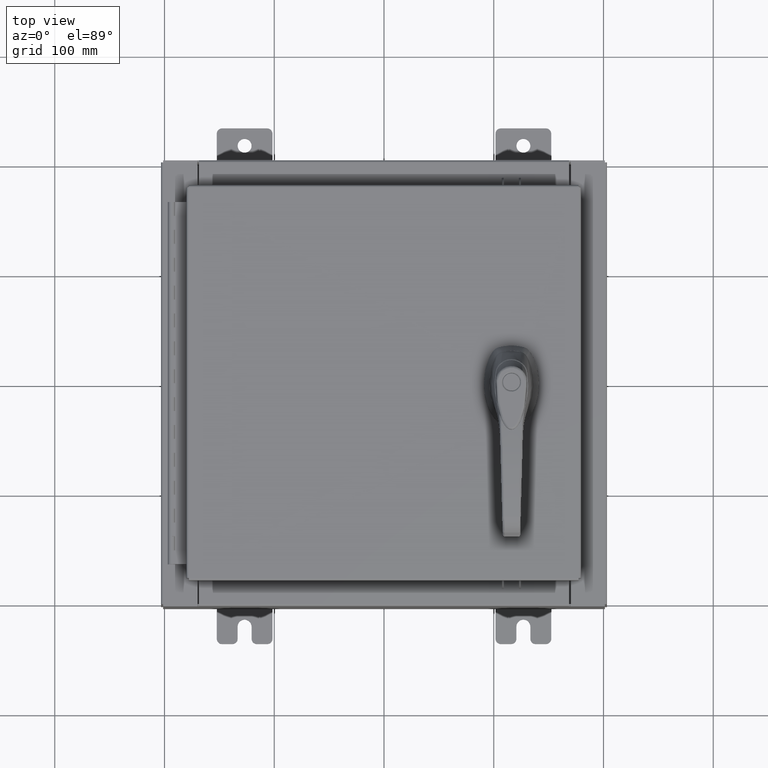
[diagram: clean part render]
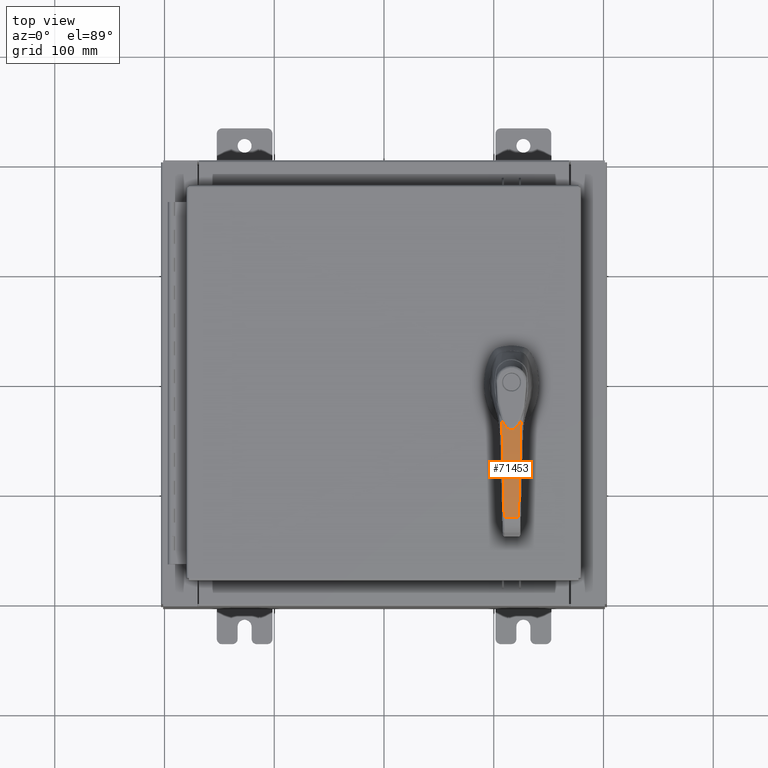
[diagram: same view with one face highlighted and labeled with its STEP entity id]
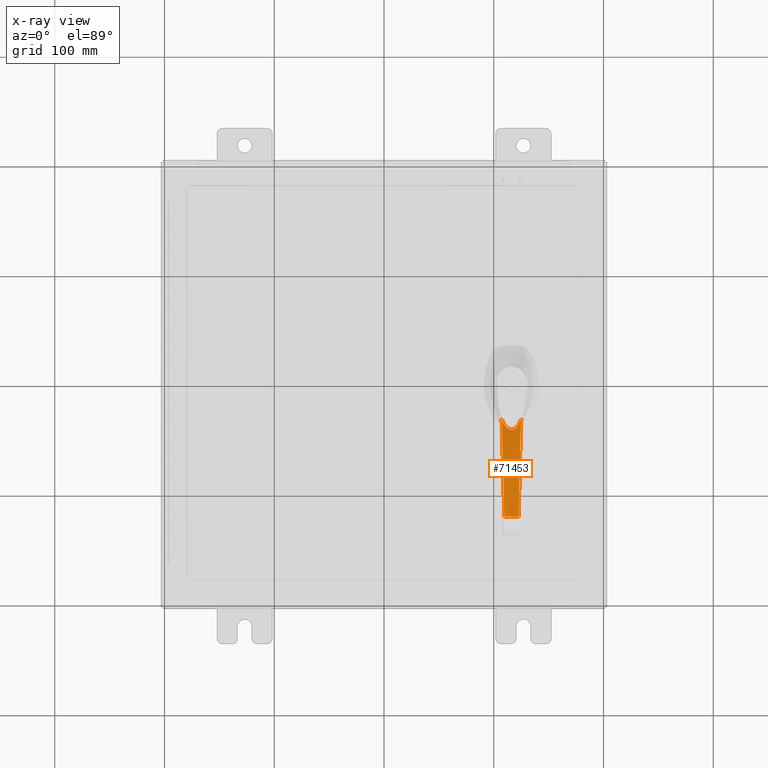
[diagram: x-ray of the same camera — body ghosted, the highlighted face saturated]
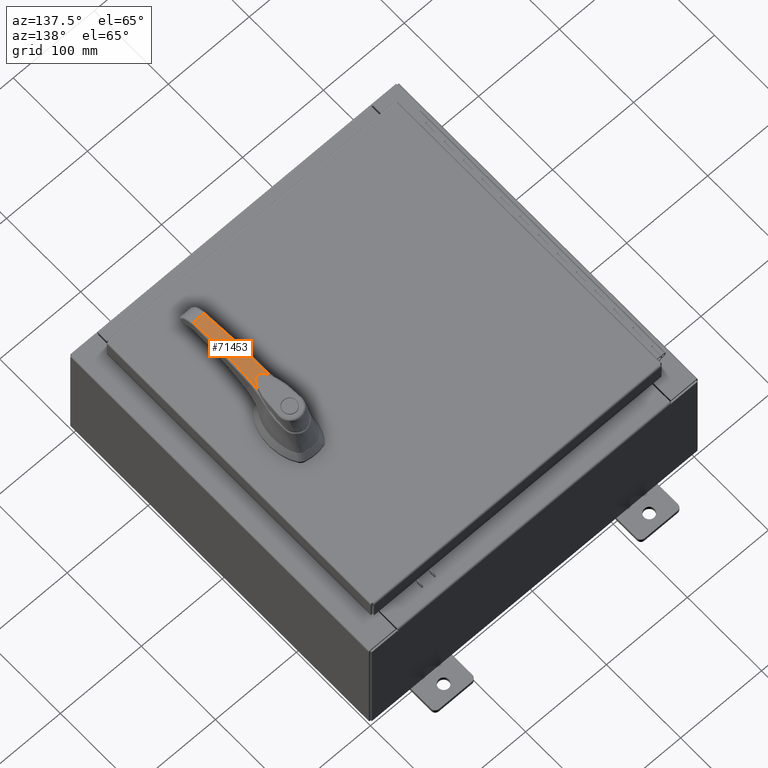
[diagram: same view with one face highlighted and labeled with its STEP entity id]
A machine part, top view. The second image highlights one B-rep face of the part: STEP entity #71453.
The next image is the same camera in x-ray: the body ghosted, the highlighted face saturated — about 0% of this face is hidden behind the body in this view.
A second angle (auxiliary view) of the same face is appended — the face is thin or edge-on in the first view.
In plain terms, the highlighted cylindrical surface (partial cylindrical patch) has radius 300 mm, axis along (-1, 0, 0).
Its self-contained STEP definition (entity closure, byte-faithful):
#2113 = CARTESIAN_POINT ( 'NONE',  ( 1.549936709521848400, 0.3396595521461270900, 1.832114909085221100 ) ) ;
#2785 = CARTESIAN_POINT ( 'NONE',  ( 1.403971242061131700, 0.3027154104630230300, 1.811233171745011900 ) ) ;
#3139 = CARTESIAN_POINT ( 'NONE',  ( 1.530290378760440900, 0.2278771327639587700, 1.829412508182425700 ) ) ;
#3503 = CARTESIAN_POINT ( 'NONE',  ( 1.632741932373680700, 0.1304805322846232000, 1.843136084596468200 ) ) ;
#3511 = CARTESIAN_POINT ( 'NONE',  ( 4.805199877897496900, 0.2549857665720962600, 1.824333981427781500 ) ) ;
#3866 = CARTESIAN_POINT ( 'NONE',  ( 1.680095335233368100, -0.01197136183687798000, 1.849171087712740500 ) ) ;
#3874 = CARTESIAN_POINT ( 'NONE',  ( 3.354255696629973000, 0.2927274858646526900, 1.939252233246037600 ) ) ;
#4206 = CARTESIAN_POINT ( 'NONE',  ( 1.638941990221857400, -0.1218315539769631400, 1.843937560668217300 ) ) ;
#4212 = CARTESIAN_POINT ( 'NONE',  ( 1.962192344927163400, 0.3289308373534525200, 1.881644855761424700 ) ) ;
#4565 = CARTESIAN_POINT ( 'NONE',  ( 1.534019329573112600, -0.2251692678404879100, 1.829928034573026000 ) ) ;
#4928 = CARTESIAN_POINT ( 'NONE',  ( 1.413242188827258200, -0.2980603697912322400, 1.812614391285411100 ) ) ;
#6260 = VERTEX_POINT ( 'NONE', #61415 ) ;
#6337 = EDGE_CURVE ( 'NONE', #45424, #81669, #36201, .T. ) ;
#8242 = EDGE_CURVE ( 'NONE', #6260, #19257, #20501, .T. ) ;
#10086 = CARTESIAN_POINT ( 'NONE',  ( 1.285167403707583800, 0.3546133445978453800, 1.792860362760494900 ) ) ;
#10301 = CARTESIAN_POINT ( 'NONE',  ( 1.461149604711532000, -0.3419711910575410400, 1.819977865742850500 ) ) ;
#11109 = CARTESIAN_POINT ( 'NONE',  ( 1.410378708594597600, 0.2995076315425556600, 1.812188464822335600 ) ) ;
#11487 = CARTESIAN_POINT ( 'NONE',  ( 1.531637965723847300, 0.2269023104898830500, 1.829598928321424200 ) ) ;
#11822 = CARTESIAN_POINT ( 'NONE',  ( 1.640565656399495000, 0.1198494022903185000, 1.844149003382669500 ) ) ;
#11830 = CARTESIAN_POINT ( 'NONE',  ( 4.713819558154678900, 0.2573626924901422100, 1.837270814955571000 ) ) ;
#12181 = CARTESIAN_POINT ( 'NONE',  ( 1.675677567251034000, -0.04071549074534740900, 1.848616337587193300 ) ) ;
#12189 = CARTESIAN_POINT ( 'NONE',  ( 3.255921162986638300, 0.2952847344197879200, 1.940502775483815600 ) ) ;
#12548 = CARTESIAN_POINT ( 'NONE',  ( 1.634216720233409200, -0.1284710039474825400, 1.843326990127290800 ) ) ;
#12556 = CARTESIAN_POINT ( 'NONE',  ( 1.638260262526217000, 0.3373621368790556400, 1.844188585699163800 ) ) ;
#12897 = CARTESIAN_POINT ( 'NONE',  ( 1.532357968586527600, -0.2263797702776801100, 1.829698477823363100 ) ) ;
#13250 = CARTESIAN_POINT ( 'NONE',  ( 1.373760058113485000, -0.3180463064242660100, 1.806743859184427100 ) ) ;
#19257 = VERTEX_POINT ( 'NONE', #73071 ) ;
#19429 = CARTESIAN_POINT ( 'NONE',  ( 1.411895976838739800, 0.2987418508005002500, 1.812414227103907000 ) ) ;
#19778 = CARTESIAN_POINT ( 'NONE',  ( 1.553573932691922000, 0.2109698468301410000, 1.832631472685386300 ) ) ;
#20132 = CARTESIAN_POINT ( 'NONE',  ( 1.655649401556312400, 0.09432184503515099500, 1.846080186316502600 ) ) ;
#20498 = CARTESIAN_POINT ( 'NONE',  ( 1.670501837927473600, -0.05933737364029612700, 1.847964213049003900 ) ) ;
#20501 = B_SPLINE_CURVE_WITH_KNOTS ( 'NONE', 3,
 ( #10086, #43458, #51811, #2113 ),
 .UNSPECIFIED., .F., .F.,
 ( 4, 4 ),
 ( 0.0000000000000000000, 1.000000000000000000 ),
 .UNSPECIFIED. ) ;
#20508 = CARTESIAN_POINT ( 'NONE',  ( 3.197470930382345000, 0.2968049740498352500, 1.940850218433535700 ) ) ;
#20847 = CARTESIAN_POINT ( 'NONE',  ( 1.633059957810182300, -0.1300495619729993800, 1.843177265309141600 ) ) ;
#21215 = CARTESIAN_POINT ( 'NONE',  ( 1.514556654445395700, -0.2392854525976224900, 1.827236800739576500 ) ) ;
#21590 = CARTESIAN_POINT ( 'NONE',  ( 1.285167405151898900, -0.3546133440856410500, 1.792860362220502600 ) ) ;
#24680 = ORIENTED_EDGE ( 'NONE', *, *, #104961, .T. ) ;
#26982 = CARTESIAN_POINT ( 'NONE',  ( 1.285167405151898900, -0.3546133440856410500, 1.792860362220502600 ) ) ;
#27808 = CARTESIAN_POINT ( 'NONE',  ( 1.435195623636535500, 0.2869488096781734300, 1.815878705668508000 ) ) ;
#28161 = CARTESIAN_POINT ( 'NONE',  ( 1.597928116298629200, 0.1710148495156830500, 1.838578136496558100 ) ) ;
#28432 = CARTESIAN_POINT ( 'NONE',  ( 4.805199877897498700, 6.099088612688645700, 1.824333981427783700 ) ) ;
#28520 = CARTESIAN_POINT ( 'NONE',  ( 1.663589786831885200, 0.07759667621417810900, 1.847089689351789000 ) ) ;
#28530 = CARTESIAN_POINT ( 'NONE',  ( 4.384581782162134000, 0.2659316760357903200, 1.876757077655745200 ) ) ;
#28869 = CARTESIAN_POINT ( 'NONE',  ( 1.667982851357451300, -0.06648546394591629800, 1.847645912295601500 ) ) ;
#28877 = CARTESIAN_POINT ( 'NONE',  ( 3.183455179332785900, 0.2971695341875233400, 1.940896711539991800 ) ) ;
#29226 = ORIENTED_EDGE ( 'NONE', *, *, #30193, .F. ) ;
#29238 = CARTESIAN_POINT ( 'NONE',  ( 1.620322453436930900, -0.1472583990823385100, 1.841527598334620000 ) ) ;
#29607 = CARTESIAN_POINT ( 'NONE',  ( 1.466267725725023800, -0.2693476378157188500, 1.820376805866247300 ) ) ;
#30193 = EDGE_CURVE ( 'NONE', #45424, #37906, #99960, .T. ) ;
#31198 = CARTESIAN_POINT ( 'NONE',  ( 3.722113557932751800, -0.2831583025764937100, 1.939610180467789000 ) ) ;
#31293 = CYLINDRICAL_SURFACE ( 'NONE', #88780, 11.81102362204724300 ) ;
#33643 = VECTOR ( 'NONE', #94616, 39.37007874015748100 ) ;
#34351 = CARTESIAN_POINT ( 'NONE',  ( 3.149606299212600400, 0.3588687022006186700, -9.870078740157481400 ) ) ;
#36159 = CARTESIAN_POINT ( 'NONE',  ( 1.486437698170242500, 0.2572311655015946900, 1.823263412956679800 ) ) ;
#36201 = LINE ( 'NONE', #28432, #33643 ) ;
#36501 = CARTESIAN_POINT ( 'NONE',  ( 1.621908635050497000, 0.1444618146254948700, 1.841728913890022800 ) ) ;
#36856 = CARTESIAN_POINT ( 'NONE',  ( 1.666216210166185900, 0.07113358953773331300, 1.847422397405533500 ) ) ;
#36863 = CARTESIAN_POINT ( 'NONE',  ( 3.988872018762663600, 0.2762265065312504700, 1.911874702511218400 ) ) ;
#37229 = CARTESIAN_POINT ( 'NONE',  ( 1.667157571439228600, -0.06869618003176464200, 1.847541531571267300 ) ) ;
#37237 = CARTESIAN_POINT ( 'NONE',  ( 2.994844391632358200, 0.3020755544132373000, 1.941348543382791100 ) ) ;
#37589 = CARTESIAN_POINT ( 'NONE',  ( 1.580548218858697200, -0.1876082219816772000, 1.836261751761620200 ) ) ;
#37906 = VERTEX_POINT ( 'NONE', #50661 ) ;
#37938 = CARTESIAN_POINT ( 'NONE',  ( 1.431996714045676000, -0.2883624919504084700, 1.815388736092747000 ) ) ;
#39509 = CARTESIAN_POINT ( 'NONE',  ( 4.805199877897497800, -0.2549857665720935400, 1.824333981427782600 ) ) ;
#43458 = CARTESIAN_POINT ( 'NONE',  ( 1.372892883534754200, 0.3469424119738788700, 1.806884306011977700 ) ) ;
#44157 = CARTESIAN_POINT ( 'NONE',  ( 1.362201980543991300, 0.3225149545132348100, 1.804919336107086500 ) ) ;
#44496 = CARTESIAN_POINT ( 'NONE',  ( 1.516830157375135300, 0.2373842696044991000, 1.827543091604346900 ) ) ;
#44847 = CARTESIAN_POINT ( 'NONE',  ( 1.630415031557484800, 0.1335971382965786800, 1.842834560165926400 ) ) ;
#45226 = CARTESIAN_POINT ( 'NONE',  ( 1.666943250047650200, 0.06925946003726704500, 1.847514415332581800 ) ) ;
#45235 = CARTESIAN_POINT ( 'NONE',  ( 3.605464906671495700, 0.2861957975425940000, 1.932408694108102900 ) ) ;
#45424 = VERTEX_POINT ( 'NONE', #65337 ) ;
#45578 = CARTESIAN_POINT ( 'NONE',  ( 1.658104608024421300, -0.08997679606067522700, 1.846394063252969600 ) ) ;
#45584 = CARTESIAN_POINT ( 'NONE',  ( 2.504789629931729600, 0.3148162043671251500, 1.924408988684542400 ) ) ;
#45931 = CARTESIAN_POINT ( 'NONE',  ( 1.549882932702344200, -0.2132559411452238700, 1.832109519501141400 ) ) ;
#46303 = CARTESIAN_POINT ( 'NONE',  ( 1.417457569571613400, -0.2959139997767300500, 1.813240278477134900 ) ) ;
#46883 = CARTESIAN_POINT ( 'NONE',  ( 1.285167405151898900, -0.3546133440856410500, 1.792860362220502600 ) ) ;
#47891 = CARTESIAN_POINT ( 'NONE',  ( 2.633561730653564600, -0.3114730037977900300, 1.942212103133118300 ) ) ;
#50661 = CARTESIAN_POINT ( 'NONE',  ( 1.549936709521859200, -0.3396595521461254200, 1.832114909085222200 ) ) ;
#51811 = CARTESIAN_POINT ( 'NONE',  ( 1.461149604711799300, 0.3419711910575374800, 1.819977865742880700 ) ) ;
#52464 = CARTESIAN_POINT ( 'NONE',  ( 1.395339831983441600, 0.3069710070873726300, 1.809941467447426800 ) ) ;
#52653 = VERTEX_POINT ( 'NONE', #46883 ) ;
#52835 = CARTESIAN_POINT ( 'NONE',  ( 1.528395749153942800, 0.2292404292824109500, 1.829150185326987400 ) ) ;
#53182 = CARTESIAN_POINT ( 'NONE',  ( 1.632357006304437000, 0.1310003132830380700, 1.843086230139446400 ) ) ;
#53519 = EDGE_CURVE ( 'NONE', #37906, #52653, #57704, .T. ) ;
#53526 = CARTESIAN_POINT ( 'NONE',  ( 1.680175953285407000, 0.02266160196180203400, 1.849181196457978100 ) ) ;
#53534 = CARTESIAN_POINT ( 'NONE',  ( 3.397158093014658800, 0.2916119047857188600, 1.938425827258925000 ) ) ;
#53884 = CARTESIAN_POINT ( 'NONE',  ( 1.644906487703457200, -0.1129549742528684600, 1.844705813593933800 ) ) ;
#53891 = CARTESIAN_POINT ( 'NONE',  ( 2.085957004588871100, 0.3257099898517480400, 1.893740539790302400 ) ) ;
#54251 = CARTESIAN_POINT ( 'NONE',  ( 1.536332061329278800, -0.2234729747293776300, 1.830247252460746300 ) ) ;
#54610 = CARTESIAN_POINT ( 'NONE',  ( 1.413946465048467000, -0.2977029543502160400, 1.812719044079245100 ) ) ;
#55528 = ORIENTED_EDGE ( 'NONE', *, *, #6337, .T. ) ;
#55931 = FACE_OUTER_BOUND ( 'NONE', #107224, .T. ) ;
#56187 = CARTESIAN_POINT ( 'NONE',  ( 1.549936709521859200, -0.3396595521461254200, 1.832114909085222200 ) ) ;
#57704 = B_SPLINE_CURVE_WITH_KNOTS ( 'NONE', 3,
 ( #68294, #10301, #76578, #26982 ),
 .UNSPECIFIED., .F., .F.,
 ( 4, 4 ),
 ( 0.0000000000000000000, 1.000000000000000000 ),
 .UNSPECIFIED. ) ;
#58539 = B_SPLINE_CURVE_WITH_KNOTS ( 'NONE', 3,
 ( #3511, #11830, #78115, #28530, #86417, #36863, #94720, #45235, #103075, #53534, #3874, #61875, #12189, #70187, #20508, #78482, #28877, #86778, #37237, #95071, #45584, #103440, #53891, #4212, #62232, #12556, #70534 ),
 .UNSPECIFIED., .F., .F.,
 ( 4, 2, 2, 2, 2, 2, 1, 1, 1, 2, 2, 2, 2, 2, 4 ),
 ( 0.0000000000000000000, 0.1250000000000066100, 0.2500000000000132100, 0.3750000000000198200, 0.4375000000000230900, 0.4687500000000247600, 0.4843750000000258100, 0.4921875000000263700, 0.4960937500000263700, 0.4980468750000264200, 0.5000000000000264200, 0.6250000000000197600, 0.7500000000000132100, 0.8750000000000065500, 1.000000000000000000 ),
 .UNSPECIFIED. ) ;
#59374 = ORIENTED_EDGE ( 'NONE', *, *, #78964, .T. ) ;
#60816 = CARTESIAN_POINT ( 'NONE',  ( 1.408249181654886300, 0.3005784227495882900, 1.811871312986568900 ) ) ;
#61158 = CARTESIAN_POINT ( 'NONE',  ( 1.531099334706964100, 0.2272923127439798700, 1.829524427485562000 ) ) ;
#61415 = CARTESIAN_POINT ( 'NONE',  ( 1.285167403707583800, 0.3546133445978453800, 1.792860362760494900 ) ) ;
#61513 = CARTESIAN_POINT ( 'NONE',  ( 1.632892665029209700, 0.1302765233638269200, 1.843155604267183300 ) ) ;
#61869 = CARTESIAN_POINT ( 'NONE',  ( 1.678980772138702900, -0.02348651453883024400, 1.849031485695043800 ) ) ;
#61875 = CARTESIAN_POINT ( 'NONE',  ( 3.288871157594097200, 0.2944278238416445100, 1.940143925120731700 ) ) ;
#62223 = CARTESIAN_POINT ( 'NONE',  ( 1.635815798552256600, -0.1262595667975525100, 1.843533802100506300 ) ) ;
#62232 = CARTESIAN_POINT ( 'NONE',  ( 1.738344976384683900, 0.3347569108671062400, 1.856868895625623600 ) ) ;
#62571 = CARTESIAN_POINT ( 'NONE',  ( 1.533023177175520900, -0.2258956494556961500, 1.829790409659591400 ) ) ;
#62932 = CARTESIAN_POINT ( 'NONE',  ( 1.412839862362145600, -0.2982642543102410600, 1.812554586203142200 ) ) ;
#65337 = CARTESIAN_POINT ( 'NONE',  ( 4.805199877897497800, -0.2549857665720935400, 1.824333981427782600 ) ) ;
#67327 = DIRECTION ( 'NONE',  ( 0.0000000000000000000, 0.0000000000000000000, -1.000000000000000000 ) ) ;
#68294 = CARTESIAN_POINT ( 'NONE',  ( 1.549936709521859200, -0.3396595521461254200, 1.832114909085222200 ) ) ;
#68808 = CARTESIAN_POINT ( 'NONE',  ( 4.805199877897496900, 0.2549857665720962600, 1.824333981427781500 ) ) ;
#69116 = CARTESIAN_POINT ( 'NONE',  ( 1.411289339368788000, 0.2990482287359028100, 1.812323976823124300 ) ) ;
#69465 = CARTESIAN_POINT ( 'NONE',  ( 1.531841238162610500, 0.2267549729690646600, 1.829627039123025200 ) ) ;
#69827 = CARTESIAN_POINT ( 'NONE',  ( 1.647126988818380200, 0.1096758325861598200, 1.844991371880547100 ) ) ;
#70179 = CARTESIAN_POINT ( 'NONE',  ( 1.673618130089375500, -0.04931904063700305600, 1.848357284676164200 ) ) ;
#70187 = CARTESIAN_POINT ( 'NONE',  ( 3.217029300581202300, 0.2962962612095056400, 1.940761667420589200 ) ) ;
#70529 = CARTESIAN_POINT ( 'NONE',  ( 1.633523690778703000, -0.1294182121702315800, 1.843237296713768700 ) ) ;
#70534 = CARTESIAN_POINT ( 'NONE',  ( 1.549936709521848400, 0.3396595521461270900, 1.832114909085221100 ) ) ;
#70895 = CARTESIAN_POINT ( 'NONE',  ( 1.531958825236969800, -0.2266696006880540300, 1.829643296008418600 ) ) ;
#71262 = CARTESIAN_POINT ( 'NONE',  ( 1.331296485917116400, -0.3367782127205265500, 1.800234481340103700 ) ) ;
#71453 = ADVANCED_FACE ( 'NONE', ( #55931 ), #31293, .T. ) ;
#73071 = CARTESIAN_POINT ( 'NONE',  ( 1.549936709521848400, 0.3396595521461270900, 1.832114909085221100 ) ) ;
#76578 = CARTESIAN_POINT ( 'NONE',  ( 1.372892883534211400, -0.3469424119739029100, 1.806884306011907700 ) ) ;
#77409 = CARTESIAN_POINT ( 'NONE',  ( 1.412147350919595200, 0.2986147853169351900, 1.812451616407726700 ) ) ;
#77765 = CARTESIAN_POINT ( 'NONE',  ( 1.572688659303555600, 0.1951527432348471000, 1.835214844775206400 ) ) ;
#78108 = CARTESIAN_POINT ( 'NONE',  ( 1.659580715408767400, 0.08662144301095381400, 1.846580881106998800 ) ) ;
#78115 = CARTESIAN_POINT ( 'NONE',  ( 4.611449591161986400, 0.2600272595664902500, 1.850686182147238200 ) ) ;
#78471 = CARTESIAN_POINT ( 'NONE',  ( 1.668765304187870900, -0.06434175467436680000, 1.847744838486964600 ) ) ;
#78482 = CARTESIAN_POINT ( 'NONE',  ( 3.189064689842291900, 0.2970236258625775800, 1.940879303231489700 ) ) ;
#78852 = CARTESIAN_POINT ( 'NONE',  ( 1.632785392386059800, -0.1304217021505263400, 1.843141712585298000 ) ) ;
#78964 = EDGE_CURVE ( 'NONE', #6260, #52653, #96907, .T. ) ;
#79197 = CARTESIAN_POINT ( 'NONE',  ( 1.496057899066958900, -0.2514591596072181500, 1.824640546464770400 ) ) ;
#81669 = VERTEX_POINT ( 'NONE', #68808 ) ;
#85353 = CARTESIAN_POINT ( 'NONE',  ( 1.285167403707583800, 0.3546133445978453800, 1.792860362760494900 ) ) ;
#85692 = CARTESIAN_POINT ( 'NONE',  ( 1.456517634884649400, 0.2752119614751013000, 1.818981777874292700 ) ) ;
#86038 = CARTESIAN_POINT ( 'NONE',  ( 1.609689720394137200, 0.1588428430745450500, 1.840131652460306400 ) ) ;
#86412 = CARTESIAN_POINT ( 'NONE',  ( 1.665449941461016900, 0.07307405170698719200, 1.847325382728704800 ) ) ;
#86417 = CARTESIAN_POINT ( 'NONE',  ( 4.260082169442985600, 0.2691715254287422900, 1.889412627025912600 ) ) ;
#86767 = CARTESIAN_POINT ( 'NONE',  ( 1.667452722112527900, -0.06791437558087425100, 1.847578869016391200 ) ) ;
#86778 = CARTESIAN_POINT ( 'NONE',  ( 3.180696913865969300, 0.2972412797304878600, 1.940904307400735100 ) ) ;
#87121 = CARTESIAN_POINT ( 'NONE',  ( 1.605775901944861400, -0.1635624813666115800, 1.839624697243178200 ) ) ;
#87482 = CARTESIAN_POINT ( 'NONE',  ( 1.450862142650996700, -0.2781988563434960000, 1.818152528769768600 ) ) ;
#88780 = AXIS2_PLACEMENT_3D ( 'NONE', #34351, #100541, #67327 ) ;
#89048 = CARTESIAN_POINT ( 'NONE',  ( 4.266296091497493700, -0.2690033809075377800, 1.900627307953362400 ) ) ;
#91484 = ORIENTED_EDGE ( 'NONE', *, *, #8242, .F. ) ;
#93309 = CARTESIAN_POINT ( 'NONE',  ( 1.308225132359822000, 0.3456984148396822200, 1.796546292019673100 ) ) ;
#93646 = CARTESIAN_POINT ( 'NONE',  ( 1.330367034998300800, 0.3365594585218244000, 1.800015887332627700 ) ) ;
#94008 = CARTESIAN_POINT ( 'NONE',  ( 1.500882007459669400, 0.2481468865976165000, 1.825310919166957200 ) ) ;
#94364 = CARTESIAN_POINT ( 'NONE',  ( 1.627642221730817300, 0.1372262118340391600, 1.842474734026384500 ) ) ;
#94616 = DIRECTION ( 'NONE',  ( -9.869040313511838900E-034, 1.000000000000000000, -0.0000000000000000000 ) ) ;
#94710 = CARTESIAN_POINT ( 'NONE',  ( 1.666720180148481200, 0.06983946041971624000, 1.847486187034457700 ) ) ;
#94720 = CARTESIAN_POINT ( 'NONE',  ( 3.842159367048327400, 0.2800416382408065800, 1.921681097564914600 ) ) ;
#95066 = CARTESIAN_POINT ( 'NONE',  ( 1.662946339963039100, -0.07969119123599842400, 1.847008659323601900 ) ) ;
#95071 = CARTESIAN_POINT ( 'NONE',  ( 2.823583190880747400, 0.3065276448944515600, 1.937522127742024900 ) ) ;
#95426 = CARTESIAN_POINT ( 'NONE',  ( 1.567082441918983000, -0.1995284965863739800, 1.834452944274883600 ) ) ;
#95773 = CARTESIAN_POINT ( 'NONE',  ( 1.422341089794108900, -0.2934036132516573100, 1.813963700160028600 ) ) ;
#96907 = B_SPLINE_CURVE_WITH_KNOTS ( 'NONE', 3,
 ( #85353, #93309, #93646, #44157, #102000, #52464, #2785, #60816, #11109, #69116, #19429, #77409, #27808, #85692, #36159, #94008, #44496, #102356, #52835, #3139, #61158, #11487, #69465, #19778, #77765, #28161, #86038, #36501, #94364, #44847, #102710, #53182, #3503, #61513, #11822, #69827, #20132, #78108, #28520, #86412, #36856, #94710, #45226, #103065, #53526, #3866, #61869, #12181, #70179, #20498, #78471, #28869, #86767, #37229, #95066, #45578, #103431, #53884, #4206, #62223, #12548, #70529, #20847, #78852, #29238, #87121, #37589, #95426, #45931, #103774, #54251, #4565, #62571, #12897, #70895, #21215, #79197, #29607, #87482, #37938, #95773, #46303, #104122, #54610, #4928, #62932, #13250, #71262, #21590 ),
 .UNSPECIFIED., .F., .F.,
 ( 4, 2, 1, 1, 1, 1, 1, 2, 2, 2, 1, 1, 1, 1, 1, 2, 2, 2, 1, 1, 1, 1, 1, 2, 2, 2, 1, 1, 1, 2, 2, 2, 2, 1, 1, 1, 2, 2, 2, 1, 1, 1, 1, 2, 2, 2, 1, 1, 1, 1, 1, 2, 2, 2, 1, 1, 1, 1, 1, 2, 2, 4 ),
 ( 0.0000000000000000000, 0.06249999999996815000, 0.09374999999995251000, 0.1093749999999447100, 0.1171874999999410500, 0.1210937499999395100, 0.1230468749999387300, 0.1240234374999383100, 0.1249999999999378800, 0.1874999999999314700, 0.2187499999999286100, 0.2343749999999275300, 0.2421874999999269200, 0.2460937499999266700, 0.2480468749999268100, 0.2490234374999269200, 0.2499999999999270000, 0.3124999999999368800, 0.3437499999999417700, 0.3593749999999442700, 0.3671874999999457700, 0.3710937499999464900, 0.3730468749999466000, 0.3740234374999464300, 0.3749999999999462700, 0.4062499999999482600, 0.4218749999999491500, 0.4296874999999496000, 0.4335937499999499800, 0.4355468749999501500, 0.4374999999999503200, 0.4999999999999544800, 0.5312499999999565900, 0.5468749999999577000, 0.5546874999999581400, 0.5585937499999582600, 0.5605468749999583700, 0.5624999999999584800, 0.5937499999999634700, 0.6093749999999660300, 0.6171874999999673600, 0.6210937499999680300, 0.6230468749999683600, 0.6240234374999685800, 0.6249999999999686900, 0.6874999999999671400, 0.7187499999999663600, 0.7343749999999660300, 0.7421874999999658100, 0.7460937499999656900, 0.7480468749999656900, 0.7490234374999654700, 0.7499999999999651400, 0.8124999999999749100, 0.8437499999999793500, 0.8593749999999812400, 0.8671874999999823500, 0.8710937499999827900, 0.8730468749999826800, 0.8740234374999822400, 0.8749999999999819000, 1.000000000000000000 ),
 .UNSPECIFIED. ) ;
#97349 = CARTESIAN_POINT ( 'NONE',  ( 3.177837644293160400, -0.2973156531871433700, 1.940911141800460300 ) ) ;
#97999 = ORIENTED_EDGE ( 'NONE', *, *, #53519, .F. ) ;
#99960 = B_SPLINE_CURVE_WITH_KNOTS ( 'NONE', 3,
 ( #39509, #89048, #31198, #97349, #47891, #105665, #56187 ),
 .UNSPECIFIED., .F., .F.,
 ( 4, 3, 4 ),
 ( 0.0000000000000000000, 0.4999999999999983900, 1.000000000000000000 ),
 .UNSPECIFIED. ) ;
#100541 = DIRECTION ( 'NONE',  ( 9.869040313511838900E-034, -1.000000000000000000, 0.0000000000000000000 ) ) ;
#102000 = CARTESIAN_POINT ( 'NONE',  ( 1.377774985390543000, 0.3154086851259892400, 1.807295794097437900 ) ) ;
#102356 = CARTESIAN_POINT ( 'NONE',  ( 1.524578228761914300, 0.2319618882066546400, 1.828620816553894600 ) ) ;
#102710 = CARTESIAN_POINT ( 'NONE',  ( 1.631777938687829300, 0.1317797834924152600, 1.843011216588306100 ) ) ;
#103065 = CARTESIAN_POINT ( 'NONE',  ( 1.675872596846181600, 0.04566907200706407000, 1.848644063507531400 ) ) ;
#103075 = CARTESIAN_POINT ( 'NONE',  ( 3.523797029380384000, 0.2883190942660985900, 1.935318005950529500 ) ) ;
#103431 = CARTESIAN_POINT ( 'NONE',  ( 1.649525308882289200, -0.1053112417757877500, 1.845297665867063200 ) ) ;
#103440 = CARTESIAN_POINT ( 'NONE',  ( 2.357254433555596900, 0.3186526733585843800, 1.915122674931469600 ) ) ;
#103774 = CARTESIAN_POINT ( 'NONE',  ( 1.540911026017887300, -0.2200747778046581700, 1.830878084273666500 ) ) ;
#104122 = CARTESIAN_POINT ( 'NONE',  ( 1.415001884902496600, -0.2971666495078784700, 1.812875826676418400 ) ) ;
#104961 = EDGE_CURVE ( 'NONE', #81669, #19257, #58539, .T. ) ;
#105665 = CARTESIAN_POINT ( 'NONE',  ( 2.089199057867317400, -0.3256326111308647800, 1.905831137458292100 ) ) ;
#107224 = EDGE_LOOP ( 'NONE', ( #55528, #24680, #91484, #59374, #97999, #29226 ) ) ;